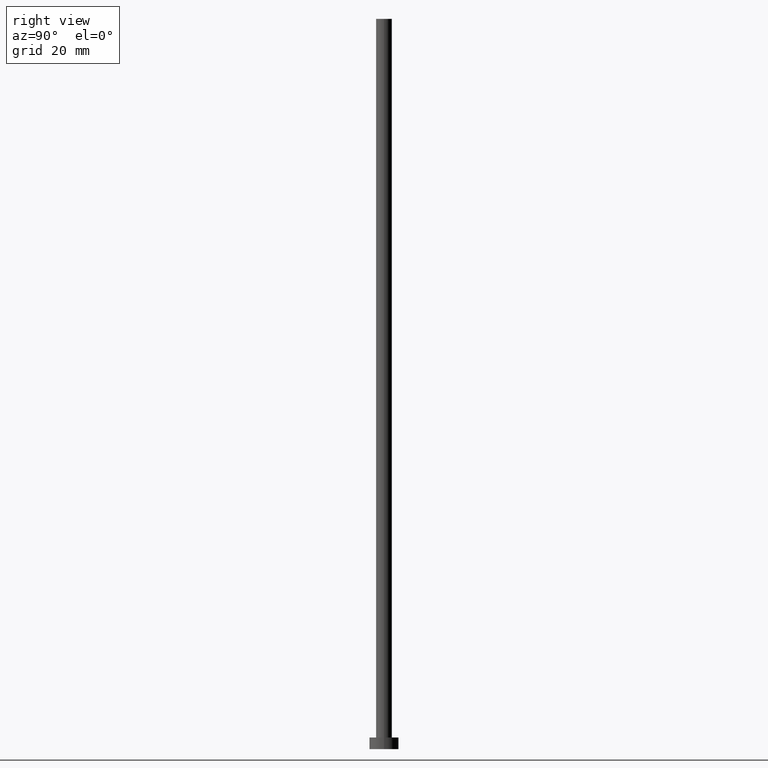
[diagram: clean part render]
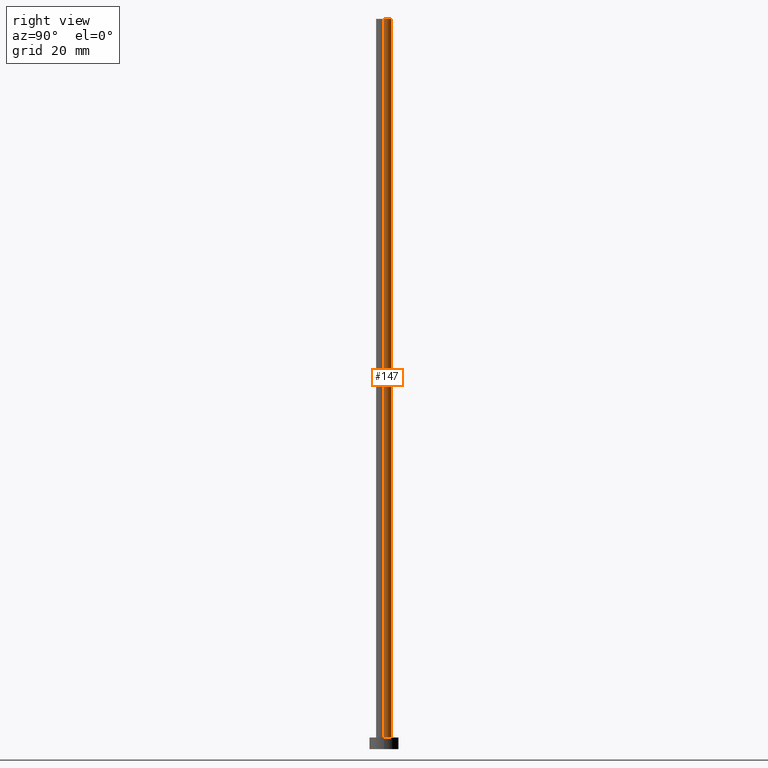
[diagram: same view with one face highlighted and labeled with its STEP entity id]
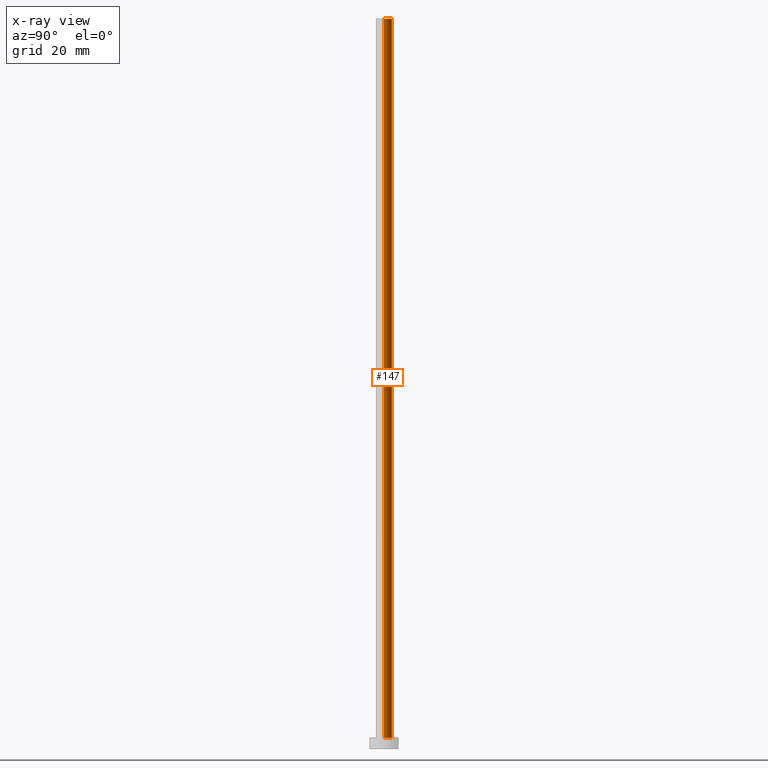
[diagram: x-ray of the same camera — body ghosted, the highlighted face saturated]
A machine part, right view. The second image highlights one B-rep face of the part: STEP entity #147.
The next image is the same camera in x-ray: the body ghosted, the highlighted face saturated — about 0% of this face is hidden behind the body in this view.
In plain terms, the highlighted cylindrical surface (edge-blend (fillet) strip) has radius 1.35 mm, axis along (-0, -0, -1).
Its self-contained STEP definition (entity closure, byte-faithful):
#18 = CARTESIAN_POINT ( 'NONE',  ( 0.000000000000000000, 0.000000000000000000, 2.000000000000000000 ) ) ;
#28 = AXIS2_PLACEMENT_3D ( 'NONE', #58, #98, #163 ) ;
#48 = CARTESIAN_POINT ( 'NONE',  ( -1.350000000000000089, 0.000000000000000000, 125.0000000000000000 ) ) ;
#50 = LINE ( 'NONE', #144, #203 ) ;
#53 = CIRCLE ( 'NONE', #132, 1.350000000000000089 ) ;
#54 = CARTESIAN_POINT ( 'NONE',  ( -1.350000000000000089, 0.000000000000000000, 2.000000000000000000 ) ) ;
#56 = EDGE_CURVE ( 'NONE', #197, #199, #145, .T. ) ;
#58 = CARTESIAN_POINT ( 'NONE',  ( 0.000000000000000000, 0.000000000000000000, 125.0000000000000000 ) ) ;
#67 = VERTEX_POINT ( 'NONE', #139 ) ;
#74 = VECTOR ( 'NONE', #222, 1000.000000000000000 ) ;
#77 = FACE_OUTER_BOUND ( 'NONE', #223, .T. ) ;
#86 = AXIS2_PLACEMENT_3D ( 'NONE', #114, #191, #169 ) ;
#87 = ORIENTED_EDGE ( 'NONE', *, *, #168, .F. ) ;
#98 = DIRECTION ( 'NONE',  ( 0.000000000000000000, 0.000000000000000000, 1.000000000000000000 ) ) ;
#100 = EDGE_CURVE ( 'NONE', #67, #199, #53, .T. ) ;
#106 = VERTEX_POINT ( 'NONE', #211 ) ;
#114 = CARTESIAN_POINT ( 'NONE',  ( 0.000000000000000000, 0.000000000000000000, 125.0000000000000000 ) ) ;
#125 = DIRECTION ( 'NONE',  ( -0.000000000000000000, -0.000000000000000000, -1.000000000000000000 ) ) ;
#132 = AXIS2_PLACEMENT_3D ( 'NONE', #18, #151, #209 ) ;
#139 = CARTESIAN_POINT ( 'NONE',  ( 1.350000000000000089, 1.653273178848926867E-16, 2.000000000000000000 ) ) ;
#144 = CARTESIAN_POINT ( 'NONE',  ( 1.350000000000000089, 1.653273178848926867E-16, 125.0000000000000000 ) ) ;
#145 = LINE ( 'NONE', #48, #74 ) ;
#147 = ADVANCED_FACE ( 'NONE', ( #77 ), #230, .T. ) ;
#151 = DIRECTION ( 'NONE',  ( 0.000000000000000000, 0.000000000000000000, 1.000000000000000000 ) ) ;
#152 = CARTESIAN_POINT ( 'NONE',  ( -1.350000000000000089, 0.000000000000000000, 125.0000000000000000 ) ) ;
#153 = CIRCLE ( 'NONE', #28, 1.350000000000000089 ) ;
#163 = DIRECTION ( 'NONE',  ( 1.000000000000000000, 0.000000000000000000, 0.000000000000000000 ) ) ;
#168 = EDGE_CURVE ( 'NONE', #106, #197, #153, .T. ) ;
#169 = DIRECTION ( 'NONE',  ( -1.000000000000000000, 0.000000000000000000, 0.000000000000000000 ) ) ;
#191 = DIRECTION ( 'NONE',  ( -0.000000000000000000, -0.000000000000000000, -1.000000000000000000 ) ) ;
#194 = ORIENTED_EDGE ( 'NONE', *, *, #56, .F. ) ;
#197 = VERTEX_POINT ( 'NONE', #152 ) ;
#199 = VERTEX_POINT ( 'NONE', #54 ) ;
#203 = VECTOR ( 'NONE', #125, 1000.000000000000000 ) ;
#209 = DIRECTION ( 'NONE',  ( 1.000000000000000000, 0.000000000000000000, 0.000000000000000000 ) ) ;
#211 = CARTESIAN_POINT ( 'NONE',  ( 1.350000000000000089, 1.653273178848926867E-16, 125.0000000000000000 ) ) ;
#221 = ORIENTED_EDGE ( 'NONE', *, *, #247, .T. ) ;
#222 = DIRECTION ( 'NONE',  ( -0.000000000000000000, -0.000000000000000000, -1.000000000000000000 ) ) ;
#223 = EDGE_LOOP ( 'NONE', ( #87, #221, #242, #194 ) ) ;
#230 = CYLINDRICAL_SURFACE ( 'NONE', #86, 1.350000000000000089 ) ;
#242 = ORIENTED_EDGE ( 'NONE', *, *, #100, .T. ) ;
#247 = EDGE_CURVE ( 'NONE', #106, #67, #50, .T. ) ;